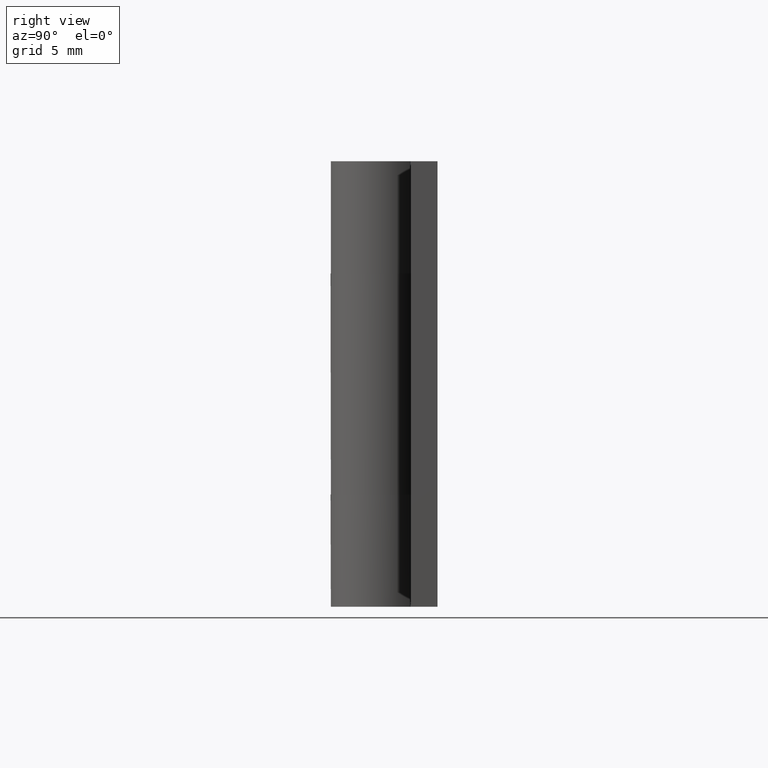
[diagram: clean part render]
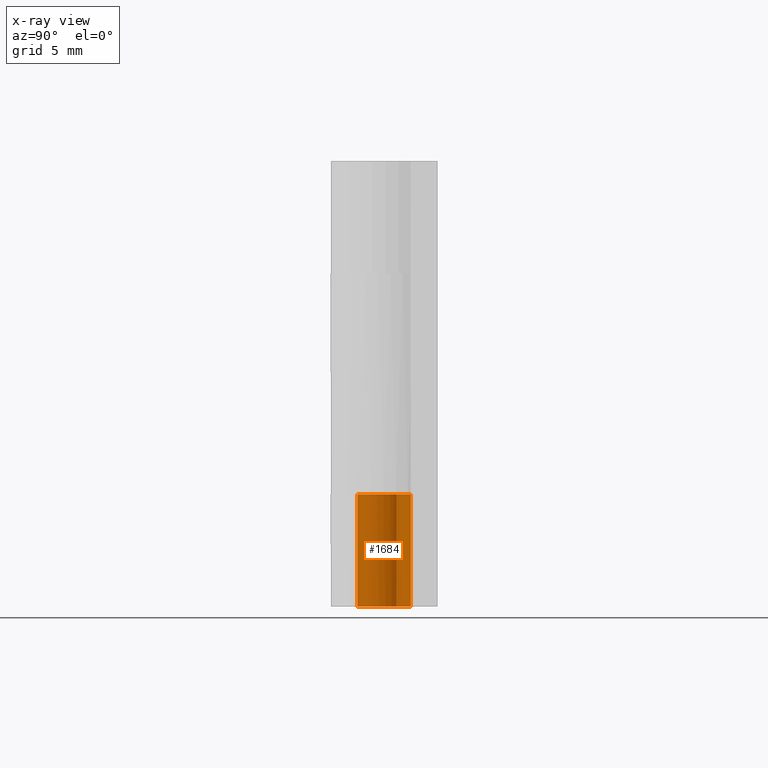
[diagram: x-ray — body ghosted, one internal face saturated and labeled with its STEP entity id]
A machine part, right view, then the same camera in x-ray: the body is ghosted and one INTERNAL B-rep face — a face not visible from any outside direction — is saturated and labeled: STEP entity #1684.
In plain terms, the highlighted face is a freeform B-spline surface patch.
Its self-contained STEP definition (entity closure, byte-faithful):
#1285=CARTESIAN_POINT('',(1.313154598666890,0.725000000000000,6.300003000000000));
#1286=VERTEX_POINT('',#1285);
#1292=CARTESIAN_POINT('',(0.0,1.500000000000000,6.300003000000000));
#1293=VERTEX_POINT('',#1292);
#1294=CARTESIAN_POINT('',(0.0,1.500000000000000,6.300003000000000));
#1295=CARTESIAN_POINT('',(-1.145299021212404,1.500000000000001,6.300003000000000));
#1296=CARTESIAN_POINT('',(-1.447014444021651,0.395157182387862,6.300003000000000));
#1297=CARTESIAN_POINT('',(-1.748729866830897,-0.709685635224275,6.300003000000000));
#1298=CARTESIAN_POINT('',(-0.762397534098847,-1.291801068276381,6.300003000000000));
#1299=CARTESIAN_POINT('',(0.223934798633204,-1.873916501328487,6.300003000000000));
#1300=CARTESIAN_POINT('',(1.045325295443044,-1.075776476182164,6.300003000000000));
#1301=CARTESIAN_POINT('',(1.866715792252885,-0.277636451035840,6.300003000000000));
#1302=CARTESIAN_POINT('',(1.313154598666891,0.724999999999998,6.300003000000000));
#1310=(BOUNDED_CURVE()B_SPLINE_CURVE(2,(#1294,#1295,#1296,#1297,#1298,#1299,#1300,#1301,#1302),.UNSPECIFIED.,.F.,.U.)B_SPLINE_CURVE_WITH_KNOTS((3,2,2,2,3),(0.0,0.250000000000000,0.500000000000000,0.750000000000000,1.0),.UNSPECIFIED.)CURVE()GEOMETRIC_REPRESENTATION_ITEM()RATIONAL_B_SPLINE_CURVE((1.0,0.794807562115481,1.0,0.794807562115481,1.0,0.794807562115481,1.0,0.794807562115481,1.0))REPRESENTATION_ITEM(''));
#1311=EDGE_CURVE('',#1293,#1286,#1310,.T.);
#1424=CARTESIAN_POINT('',(1.313154598666890,0.725000000000000,0.0));
#1425=VERTEX_POINT('',#1424);
#1426=CARTESIAN_POINT('',(0.0,1.500000000000000,0.0));
#1427=VERTEX_POINT('',#1426);
#1428=CARTESIAN_POINT('',(1.313154598666890,0.725000000000000,0.0));
#1429=CARTESIAN_POINT('',(1.866715792252885,-0.277636451035838,0.0));
#1430=CARTESIAN_POINT('',(1.045325295443045,-1.075776476182162,0.0));
#1431=CARTESIAN_POINT('',(0.223934798633207,-1.873916501328486,0.0));
#1432=CARTESIAN_POINT('',(-0.762397534098844,-1.291801068276382,0.0));
#1433=CARTESIAN_POINT('',(-1.748729866830896,-0.709685635224277,0.0));
#1434=CARTESIAN_POINT('',(-1.447014444021651,0.395157182387861,0.0));
#1435=CARTESIAN_POINT('',(-1.145299021212405,1.500000000000000,0.0));
#1436=CARTESIAN_POINT('',(0.0,1.500000000000000,0.0));
#1444=(BOUNDED_CURVE()B_SPLINE_CURVE(2,(#1428,#1429,#1430,#1431,#1432,#1433,#1434,#1435,#1436),.UNSPECIFIED.,.F.,.U.)B_SPLINE_CURVE_WITH_KNOTS((3,2,2,2,3),(0.0,0.250000000000000,0.500000000000000,0.750000000000000,1.0),.UNSPECIFIED.)CURVE()GEOMETRIC_REPRESENTATION_ITEM()RATIONAL_B_SPLINE_CURVE((1.0,0.794807562115481,1.0,0.794807562115481,1.0,0.794807562115481,1.0,0.794807562115481,1.0))REPRESENTATION_ITEM(''));
#1445=EDGE_CURVE('',#1425,#1427,#1444,.T.);
#1580=CARTESIAN_POINT('',(1.313154598666890,0.725000000000000,6.300003000000000));
#1581=CARTESIAN_POINT('',(1.313154598666890,0.725000000000000,0.0));
#1582=QUASI_UNIFORM_CURVE('',1,(#1580,#1581),.UNSPECIFIED.,.F.,.U.);
#1583=EDGE_CURVE('',#1286,#1425,#1582,.T.);
#1652=CARTESIAN_POINT('',(0.013089803247560,1.499942884596257,6.457503075000002));
#1653=CARTESIAN_POINT('',(0.013089803247560,1.499942884596257,-0.161437576875000));
#1654=CARTESIAN_POINT('',(-1.795740308696874,1.515728305839138,6.457503075000002));
#1655=CARTESIAN_POINT('',(-1.795740308696874,1.515728305839138,-0.161437576875001));
#1656=CARTESIAN_POINT('',(-1.476447697697894,-0.264768192883109,6.457503075000002));
#1657=CARTESIAN_POINT('',(-1.476447697697894,-0.264768192883109,-0.161437576875000));
#1658=CARTESIAN_POINT('',(-1.157155086698915,-2.045264691605356,6.457503075000002));
#1659=CARTESIAN_POINT('',(-1.157155086698915,-2.045264691605356,-0.161437576875001));
#1660=CARTESIAN_POINT('',(0.533476142722314,-1.401928388023483,6.457503075000002));
#1661=CARTESIAN_POINT('',(0.533476142722314,-1.401928388023483,-0.161437576875000));
#1662=CARTESIAN_POINT('',(2.224107372143544,-0.758592084441610,6.457503075000002));
#1663=CARTESIAN_POINT('',(2.224107372143544,-0.758592084441610,-0.161437576875001));
#1664=CARTESIAN_POINT('',(1.278960246531139,0.783747847073922,6.457503075000002));
#1665=CARTESIAN_POINT('',(1.278960246531139,0.783747847073922,-0.161437576875000));
#1673=(BOUNDED_SURFACE()B_SPLINE_SURFACE(1,2,((#1652,#1654,#1656,#1658,#1660,#1662,#1664),(#1653,#1655,#1657,#1659,#1661,#1663,#1665)),.UNSPECIFIED.,.F.,.F.,.U.)B_SPLINE_SURFACE_WITH_KNOTS((2,2),(3,2,2,3),(0.0,6.618940651875003),(0.0,2.819123256080202,5.638246512160404,8.457369768240607),.UNSPECIFIED.)GEOMETRIC_REPRESENTATION_ITEM()RATIONAL_B_SPLINE_SURFACE(((1.0,0.638320090924328,1.0,0.638320090924328,1.0,0.638320090924328,1.0),(1.0,0.638320090924328,1.0,0.638320090924328,1.0,0.638320090924328,1.0)))REPRESENTATION_ITEM('')SURFACE());
#1674=CARTESIAN_POINT('',(0.0,1.500000000000000,6.300003000000000));
#1675=CARTESIAN_POINT('',(0.0,1.500000000000000,0.0));
#1676=QUASI_UNIFORM_CURVE('',1,(#1674,#1675),.UNSPECIFIED.,.F.,.U.);
#1677=EDGE_CURVE('',#1293,#1427,#1676,.T.);
#1678=ORIENTED_EDGE('',*,*,#1677,.F.);
#1679=ORIENTED_EDGE('',*,*,#1311,.T.);
#1680=ORIENTED_EDGE('',*,*,#1583,.T.);
#1681=ORIENTED_EDGE('',*,*,#1445,.T.);
#1682=EDGE_LOOP('',(#1678,#1679,#1680,#1681));
#1683=FACE_OUTER_BOUND('',#1682,.T.);
#1684=ADVANCED_FACE('',(#1683),#1673,.F.);